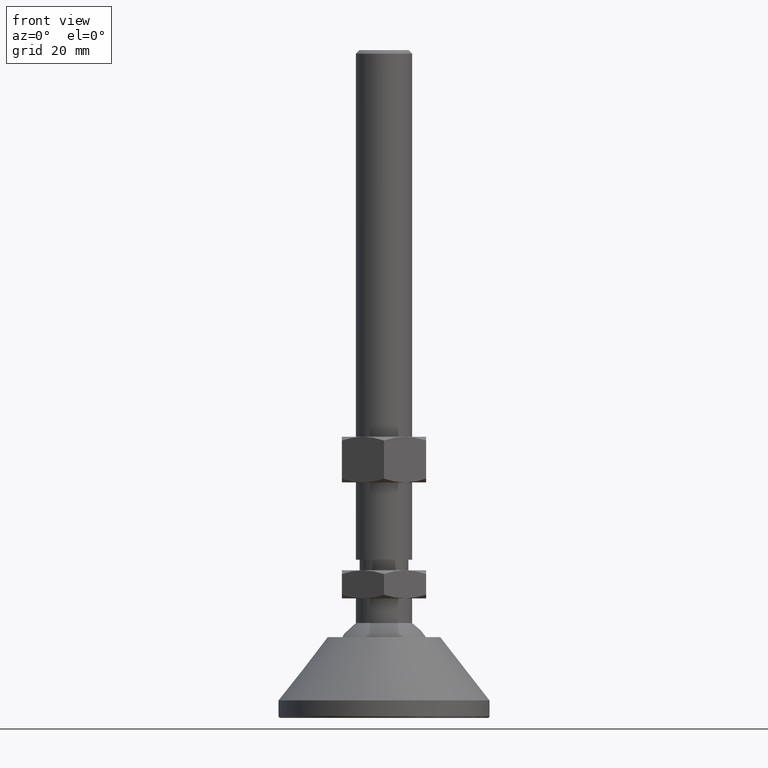
[diagram: clean part render]
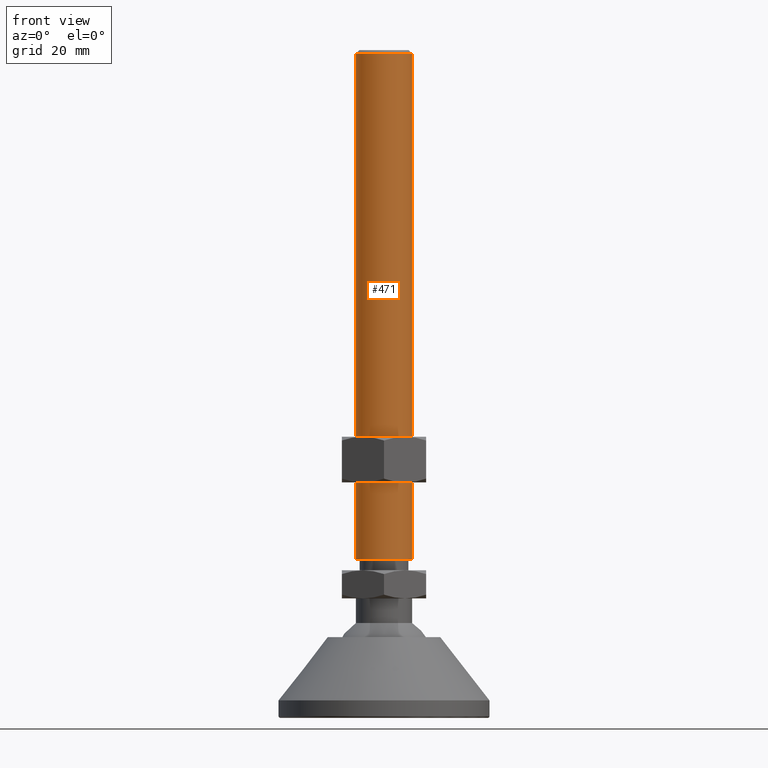
[diagram: same view with one face highlighted and labeled with its STEP entity id]
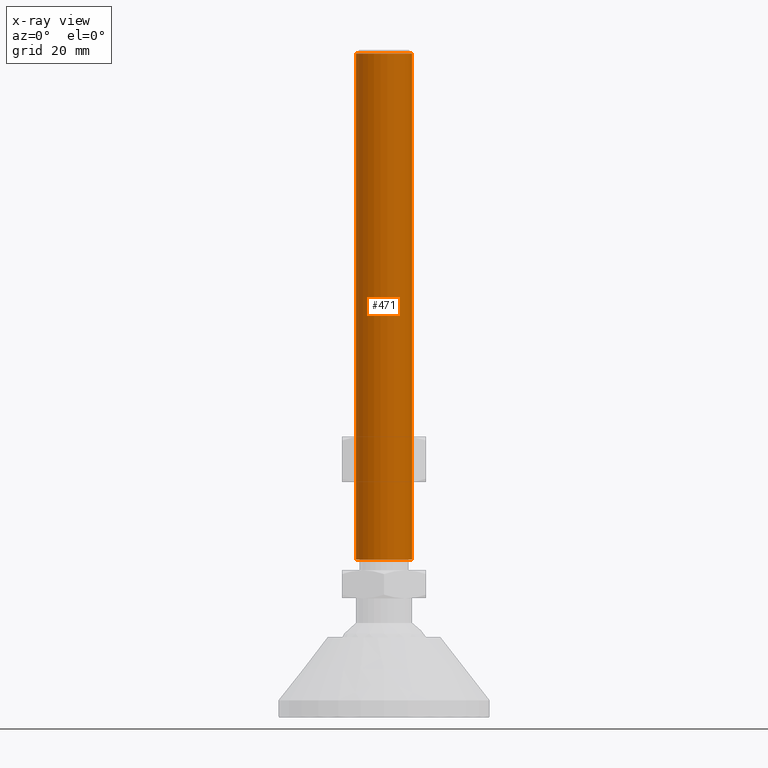
[diagram: x-ray of the same camera — body ghosted, the highlighted face saturated]
A machine part, front view. The second image highlights one B-rep face of the part: STEP entity #471.
The next image is the same camera in x-ray: the body ghosted, the highlighted face saturated — about 0% of this face is hidden behind the body in this view.
In plain terms, the highlighted cylindrical surface (bore or boss wall) has radius 8 mm, axis along (0, 0, 1).
Its self-contained STEP definition (entity closure, byte-faithful):
#412=CARTESIAN_POINT('',(-8.000000000003638,2.755455E-015,45.0));
#413=VERTEX_POINT('',#412);
#414=CARTESIAN_POINT('',(8.000000000003865,2.755455E-015,45.0));
#415=VERTEX_POINT('',#414);
#416=CARTESIAN_POINT('',(1.136868E-013,2.755455E-015,45.0));
#417=DIRECTION('',(0.0,6.123234E-017,1.0));
#418=DIRECTION('',(1.0,0.0,0.0));
#419=AXIS2_PLACEMENT_3D('',#416,#417,#418);
#420=CIRCLE('',#419,8.000000000003752);
#421=EDGE_CURVE('',#413,#415,#420,.T.);
#423=CARTESIAN_POINT('',(1.136868E-013,2.755455E-015,45.0));
#424=DIRECTION('',(0.0,6.123234E-017,1.0));
#425=DIRECTION('',(1.0,0.0,0.0));
#426=AXIS2_PLACEMENT_3D('',#423,#424,#425);
#427=CIRCLE('',#426,8.000000000003752);
#428=EDGE_CURVE('',#415,#413,#427,.T.);
#437=CARTESIAN_POINT('',(1.136868E-013,2.755455E-015,45.0));
#438=DIRECTION('',(0.0,6.123234E-017,1.0));
#439=DIRECTION('',(1.0,0.0,0.0));
#440=AXIS2_PLACEMENT_3D('',#437,#438,#439);
#441=CYLINDRICAL_SURFACE('',#440,8.000000000003752);
#442=ORIENTED_EDGE('',*,*,#428,.T.);
#443=ORIENTED_EDGE('',*,*,#421,.T.);
#444=CARTESIAN_POINT('',(8.000000000003865,1.157291E-014,189.0));
#445=VERTEX_POINT('',#444);
#446=CARTESIAN_POINT('',(8.000000000003865,2.755455E-015,45.0));
#447=DIRECTION('',(0.0,0.0,1.0));
#448=VECTOR('',#447,144.0);
#449=LINE('',#446,#448);
#450=EDGE_CURVE('',#415,#445,#449,.T.);
#451=ORIENTED_EDGE('',*,*,#450,.T.);
#452=CARTESIAN_POINT('',(-8.000000000003638,1.157291E-014,189.0));
#453=VERTEX_POINT('',#452);
#454=CARTESIAN_POINT('',(1.136868E-013,1.157291E-014,189.0));
#455=DIRECTION('',(0.0,6.123234E-017,1.0));
#456=DIRECTION('',(1.0,0.0,0.0));
#457=AXIS2_PLACEMENT_3D('',#454,#455,#456);
#458=CIRCLE('',#457,8.000000000003752);
#459=EDGE_CURVE('',#453,#445,#458,.T.);
#460=ORIENTED_EDGE('',*,*,#459,.F.);
#461=CARTESIAN_POINT('',(1.136868E-013,1.157291E-014,189.0));
#462=DIRECTION('',(0.0,6.123234E-017,1.0));
#463=DIRECTION('',(1.0,0.0,0.0));
#464=AXIS2_PLACEMENT_3D('',#461,#462,#463);
#465=CIRCLE('',#464,8.000000000003752);
#466=EDGE_CURVE('',#445,#453,#465,.T.);
#467=ORIENTED_EDGE('',*,*,#466,.F.);
#468=ORIENTED_EDGE('',*,*,#450,.F.);
#469=EDGE_LOOP('',(#442,#443,#451,#460,#467,#468));
#470=FACE_OUTER_BOUND('',#469,.T.);
#471=ADVANCED_FACE('',(#470),#441,.T.);